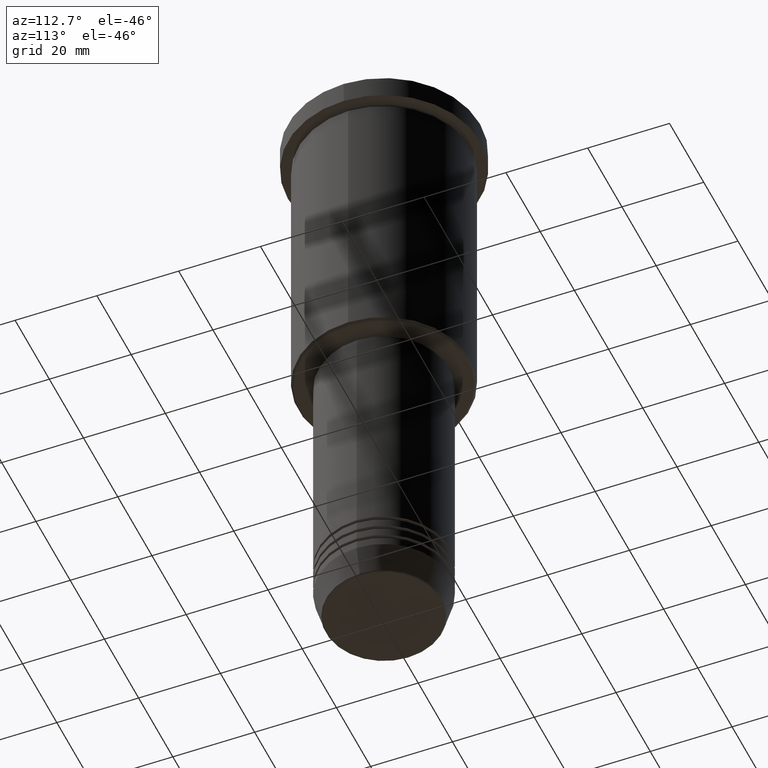
[diagram: clean part render]
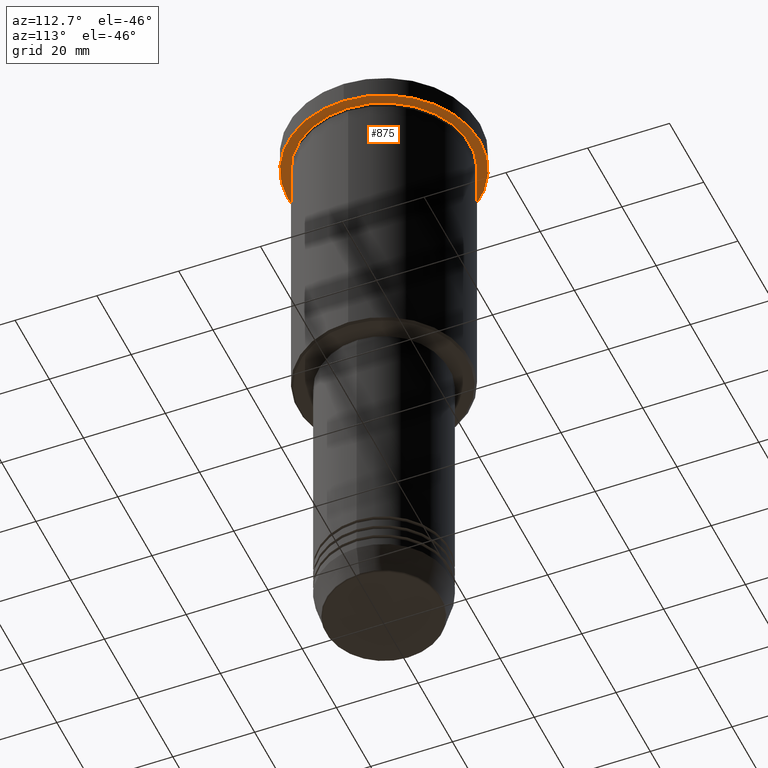
[diagram: same view with one face highlighted and labeled with its STEP entity id]
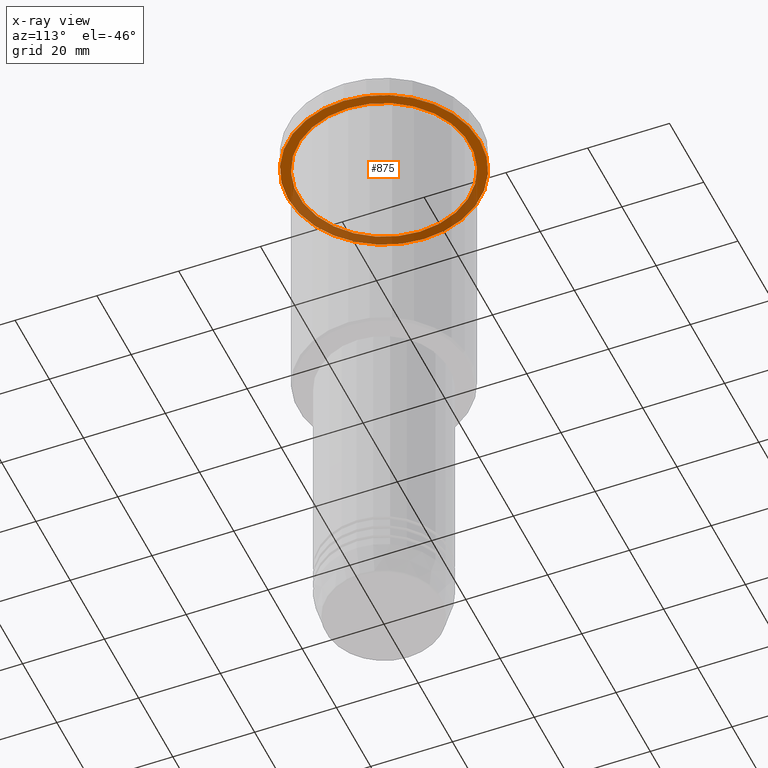
[diagram: x-ray of the same camera — body ghosted, the highlighted face saturated]
A machine part, auxiliary view. The second image highlights one B-rep face of the part: STEP entity #875.
The next image is the same camera in x-ray: the body ghosted, the highlighted face saturated — about 38% of this face is hidden behind the body in this view.
In plain terms, the highlighted planar face has unit normal (0, 0, -1).
Its self-contained STEP definition (entity closure, byte-faithful):
#17 = PLANE ( 'NONE',  #1011 ) ;
#32 = EDGE_LOOP ( 'NONE', ( #1009, #110 ) ) ;
#41 = CIRCLE ( 'NONE', #866, 23.50000000000000000 ) ;
#54 = DIRECTION ( 'NONE',  ( -0.000000000000000000, -0.000000000000000000, 1.000000000000000000 ) ) ;
#60 = AXIS2_PLACEMENT_3D ( 'NONE', #1037, #220, #813 ) ;
#110 = ORIENTED_EDGE ( 'NONE', *, *, #915, .F. ) ;
#112 = DIRECTION ( 'NONE',  ( 0.000000000000000000, 0.000000000000000000, -1.000000000000000000 ) ) ;
#127 = CARTESIAN_POINT ( 'NONE',  ( 0.000000000000000000, 0.000000000000000000, -5.999999999999994671 ) ) ;
#136 = CARTESIAN_POINT ( 'NONE',  ( -23.50000000000000000, 2.877919977996280320E-15, -5.999999999999994671 ) ) ;
#187 = DIRECTION ( 'NONE',  ( -0.000000000000000000, -0.000000000000000000, 1.000000000000000000 ) ) ;
#192 = AXIS2_PLACEMENT_3D ( 'NONE', #614, #871, #322 ) ;
#220 = DIRECTION ( 'NONE',  ( -0.000000000000000000, -0.000000000000000000, 1.000000000000000000 ) ) ;
#281 = CARTESIAN_POINT ( 'NONE',  ( 23.50000000000000000, 0.000000000000000000, -5.999999999999994671 ) ) ;
#304 = DIRECTION ( 'NONE',  ( -1.000000000000000000, 0.000000000000000000, -0.000000000000000000 ) ) ;
#321 = ORIENTED_EDGE ( 'NONE', *, *, #562, .T. ) ;
#322 = DIRECTION ( 'NONE',  ( -1.000000000000000000, 0.000000000000000000, 0.000000000000000000 ) ) ;
#352 = CIRCLE ( 'NONE', #60, 21.00000000000000000 ) ;
#388 = CARTESIAN_POINT ( 'NONE',  ( 0.000000000000000000, 23.50000000000000000, -5.999999999999994671 ) ) ;
#426 = ORIENTED_EDGE ( 'NONE', *, *, #996, .T. ) ;
#458 = CIRCLE ( 'NONE', #192, 21.00000000000000000 ) ;
#477 = CIRCLE ( 'NONE', #606, 23.50000000000000000 ) ;
#562 = EDGE_CURVE ( 'NONE', #860, #1138, #352, .T. ) ;
#597 = CARTESIAN_POINT ( 'NONE',  ( 21.00000000000000000, 2.571758278209441661E-15, -5.999999999999994671 ) ) ;
#606 = AXIS2_PLACEMENT_3D ( 'NONE', #127, #54, #1147 ) ;
#614 = CARTESIAN_POINT ( 'NONE',  ( 0.000000000000000000, 0.000000000000000000, -5.999999999999994671 ) ) ;
#666 = CARTESIAN_POINT ( 'NONE',  ( 0.000000000000000000, 0.000000000000000000, -5.999999999999994671 ) ) ;
#735 = DIRECTION ( 'NONE',  ( 1.000000000000000000, 0.000000000000000000, 0.000000000000000000 ) ) ;
#752 = CARTESIAN_POINT ( 'NONE',  ( -21.00000000000000000, 0.000000000000000000, -5.999999999999994671 ) ) ;
#811 = VERTEX_POINT ( 'NONE', #281 ) ;
#813 = DIRECTION ( 'NONE',  ( -1.000000000000000000, 0.000000000000000000, 0.000000000000000000 ) ) ;
#860 = VERTEX_POINT ( 'NONE', #752 ) ;
#866 = AXIS2_PLACEMENT_3D ( 'NONE', #666, #187, #735 ) ;
#871 = DIRECTION ( 'NONE',  ( -0.000000000000000000, -0.000000000000000000, 1.000000000000000000 ) ) ;
#875 = ADVANCED_FACE ( 'NONE', ( #932, #1106 ), #17, .T. ) ;
#915 = EDGE_CURVE ( 'NONE', #1089, #811, #41, .T. ) ;
#932 = FACE_BOUND ( 'NONE', #943, .T. ) ;
#943 = EDGE_LOOP ( 'NONE', ( #321, #426 ) ) ;
#996 = EDGE_CURVE ( 'NONE', #1138, #860, #458, .T. ) ;
#1009 = ORIENTED_EDGE ( 'NONE', *, *, #1091, .F. ) ;
#1011 = AXIS2_PLACEMENT_3D ( 'NONE', #388, #112, #304 ) ;
#1037 = CARTESIAN_POINT ( 'NONE',  ( 0.000000000000000000, 0.000000000000000000, -5.999999999999994671 ) ) ;
#1089 = VERTEX_POINT ( 'NONE', #136 ) ;
#1091 = EDGE_CURVE ( 'NONE', #811, #1089, #477, .T. ) ;
#1106 = FACE_OUTER_BOUND ( 'NONE', #32, .T. ) ;
#1138 = VERTEX_POINT ( 'NONE', #597 ) ;
#1147 = DIRECTION ( 'NONE',  ( 1.000000000000000000, 0.000000000000000000, 0.000000000000000000 ) ) ;